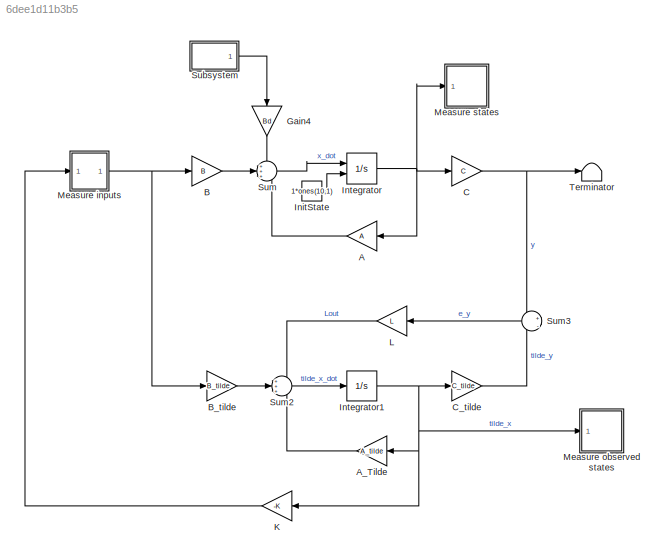
MODEL slx_6dee1d11b3b5
KIND model
CONFIG AbsTol = auto
CONFIG EnableMultiTasking = off
CONFIG FixedStep = auto
CONFIG MaxStep = auto
CONFIG MinStep = auto
CONFIG RelTol = 1e-3
CONFIG SampleTimeConstraint = Unconstrained
CONFIG SolverName = VariableStepAuto
CONFIG StartTime = 0.0
CONFIG StopTime = 36000
BLOCK [Gain] A
  Gain = A
  Multiplication = Matrix(K*u)
BLOCK [Gain] A_Tilde
  Gain = A_tilde
  Multiplication = Matrix(K*u)
BLOCK [Gain] B
  Gain = B
  Multiplication = Matrix(K*u)
BLOCK [Gain] B_tilde
  Gain = B_tilde
  Multiplication = Matrix(K*u)
BLOCK [Gain] C
  Gain = C
  Multiplication = Matrix(K*u)
BLOCK [Gain] C_tilde
  Gain = C_tilde
  Multiplication = Matrix(K*u)
BLOCK [Gain] Gain4
  Gain = Bd
  Multiplication = Matrix(K*u)
  NameLocation = left
BLOCK [Constant] InitState
  Value = 1*ones(10,1)
BLOCK [Integrator] Integrator
  InitialConditionSource = external
  Ports = [2, 1]
BLOCK [Integrator] Integrator1
  Ports = [1, 1]
BLOCK [Gain] K
  Gain = -K
  Multiplication = Matrix(K*u)
BLOCK [Gain] L
  Gain = L
  Multiplication = Matrix(K*u)
  NameLocation = top
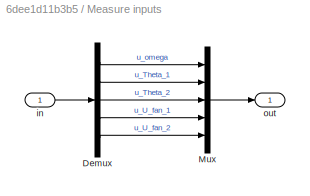
BLOCK [SubSystem] Measure inputs
  Ports = [1, 1]
  RequestExecContextInheritance = off
BLOCK [Demux] Measure inputs/Demux
  Outputs = 5
  Ports = [1, 5]
BLOCK [Mux] Measure inputs/Mux
  DisplayOption = bar
  Inputs = 5
  Ports = [5, 1]
BLOCK [Inport] Measure inputs/in
BLOCK [Outport] Measure inputs/out
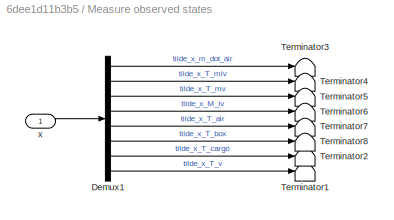
BLOCK [SubSystem] Measure observed states
  Ports = [1]
  RequestExecContextInheritance = off
BLOCK [Demux] Measure observed states/Demux1
  Outputs = 8
  Ports = [1, 8]
BLOCK [Terminator] Measure observed states/Terminator1
BLOCK [Terminator] Measure observed states/Terminator2
BLOCK [Terminator] Measure observed states/Terminator3
BLOCK [Terminator] Measure observed states/Terminator4
BLOCK [Terminator] Measure observed states/Terminator5
BLOCK [Terminator] Measure observed states/Terminator6
BLOCK [Terminator] Measure observed states/Terminator7
BLOCK [Terminator] Measure observed states/Terminator8
BLOCK [Inport] Measure observed states/x
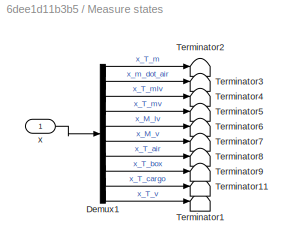
BLOCK [SubSystem] Measure states
  Ports = [1]
  RequestExecContextInheritance = off
BLOCK [Demux] Measure states/Demux1
  Outputs = 10
  Ports = [1, 10]
BLOCK [Terminator] Measure states/Terminator1
BLOCK [Terminator] Measure states/Terminator11
BLOCK [Terminator] Measure states/Terminator2
BLOCK [Terminator] Measure states/Terminator3
BLOCK [Terminator] Measure states/Terminator4
BLOCK [Terminator] Measure states/Terminator5
BLOCK [Terminator] Measure states/Terminator6
BLOCK [Terminator] Measure states/Terminator7
BLOCK [Terminator] Measure states/Terminator8
BLOCK [Terminator] Measure states/Terminator9
BLOCK [Inport] Measure states/x
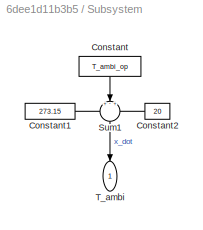
BLOCK [SubSystem] Subsystem
  Ports = [0, 1]
  RequestExecContextInheritance = off
BLOCK [Constant] Subsystem/Constant
  NameLocation = left
  Value = T_ambi_op
BLOCK [Constant] Subsystem/Constant1
  Value = 273.15
  VectorParams1D = off
BLOCK [Constant] Subsystem/Constant2
  NameLocation = top
  Value = 20
  VectorParams1D = off
BLOCK [Sum] Subsystem/Sum1
  Inputs = +-+
  NameLocation = left
  Ports = [3, 1]
BLOCK [Outport] Subsystem/T_ambi
  NameLocation = left
BLOCK [Sum] Sum
  Inputs = +++
  Ports = [3, 1]
BLOCK [Sum] Sum2
  Inputs = +++
  Ports = [3, 1]
BLOCK [Sum] Sum3
  Inputs = +|-
  NameLocation = top
  Ports = [2, 1]
BLOCK [Terminator] Terminator
LINE A:1 -> Sum:3
LINE A_Tilde:1 -> Sum2:3
LINE B:1 -> Sum:2
LINE B_tilde:1 -> Sum2:2
NET C:1 -> Sum3:1, Terminator:1
LINE C_tilde:1 -> Sum3:2
LINE Gain4:1 -> Sum:1
LINE InitState:1 -> Integrator:2
NET Integrator1:1 -> A_Tilde:1, C_tilde:1, K:1, Measure observed states:1
NET Integrator:1 -> A:1, C:1, Measure states:1
LINE K:1 -> Measure inputs:1
LINE L:1 -> Sum2:1
LINE Measure inputs/Demux:1 -> Measure inputs/Mux:1
LINE Measure inputs/Demux:2 -> Measure inputs/Mux:2
LINE Measure inputs/Demux:3 -> Measure inputs/Mux:3
LINE Measure inputs/Demux:4 -> Measure inputs/Mux:4
LINE Measure inputs/Demux:5 -> Measure inputs/Mux:5
LINE Measure inputs/Mux:1 -> Measure inputs/out:1
LINE Measure inputs/in:1 -> Measure inputs/Demux:1
NET Measure inputs:1 -> B:1, B_tilde:1
LINE Measure observed states/Demux1:1 -> Measure observed states/Terminator3:1
LINE Measure observed states/Demux1:2 -> Measure observed states/Terminator4:1
LINE Measure observed states/Demux1:3 -> Measure observed states/Terminator5:1
LINE Measure observed states/Demux1:4 -> Measure observed states/Terminator6:1
LINE Measure observed states/Demux1:5 -> Measure observed states/Terminator7:1
LINE Measure observed states/Demux1:6 -> Measure observed states/Terminator8:1
LINE Measure observed states/Demux1:7 -> Measure observed states/Terminator2:1
LINE Measure observed states/Demux1:8 -> Measure observed states/Terminator1:1
LINE Measure observed states/x:1 -> Measure observed states/Demux1:1
LINE Measure states/Demux1:1 -> Measure states/Terminator2:1
LINE Measure states/Demux1:10 -> Measure states/Terminator1:1
LINE Measure states/Demux1:2 -> Measure states/Terminator3:1
LINE Measure states/Demux1:3 -> Measure states/Terminator4:1
LINE Measure states/Demux1:4 -> Measure states/Terminator5:1
LINE Measure states/Demux1:5 -> Measure states/Terminator6:1
LINE Measure states/Demux1:6 -> Measure states/Terminator7:1
LINE Measure states/Demux1:7 -> Measure states/Terminator8:1
LINE Measure states/Demux1:8 -> Measure states/Terminator9:1
LINE Measure states/Demux1:9 -> Measure states/Terminator11:1
LINE Measure states/x:1 -> Measure states/Demux1:1
LINE Subsystem/Constant1:1 -> Subsystem/Sum1:1
LINE Subsystem/Constant2:1 -> Subsystem/Sum1:3
LINE Subsystem/Constant:1 -> Subsystem/Sum1:2
LINE Subsystem/Sum1:1 -> Subsystem/T_ambi:1
LINE Subsystem:1 -> Gain4:1
LINE Sum2:1 -> Integrator1:1
LINE Sum3:1 -> L:1
LINE Sum:1 -> Integrator:1
note: NET lines group one-source signal fan-out (src -> all destinations, sorted); 1:1 wires keep LINE
